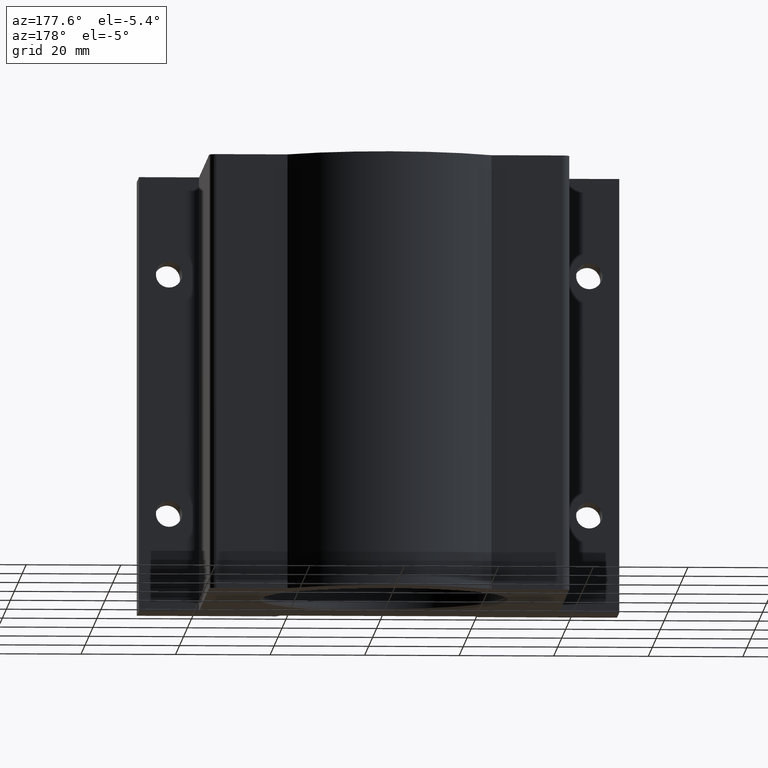
[diagram: clean part render]
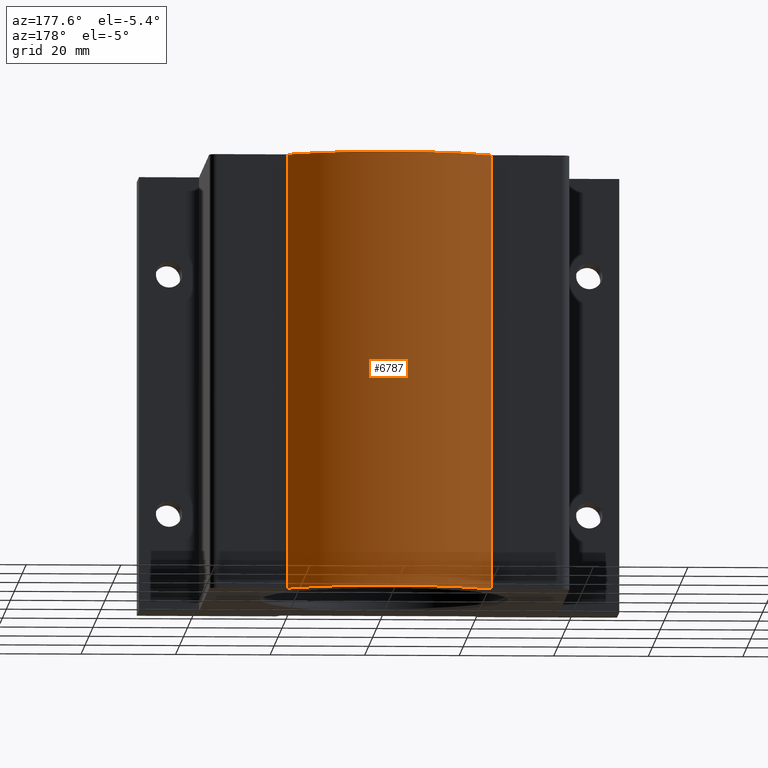
[diagram: same view with one face highlighted and labeled with its STEP entity id]
A machine part, auxiliary view. The second image highlights one B-rep face of the part: STEP entity #6787.
In plain terms, the highlighted cylindrical surface (partial cylindrical patch) has radius 33.3248 mm, axis along (0, 0, 1).
Its self-contained STEP definition (entity closure, byte-faithful):
#41 = CARTESIAN_POINT ( 'NONE',  ( -0.8493197277821821212, 0.9999999999999998890, -1.812499999999999778 ) ) ;
#61 = CARTESIAN_POINT ( 'NONE',  ( 0.000000000000000000, 0.000000000000000000, -1.812499999999999778 ) ) ;
#116 = VERTEX_POINT ( 'NONE', #7252 ) ;
#143 = DIRECTION ( 'NONE',  ( 0.000000000000000000, 0.000000000000000000, 1.000000000000000000 ) ) ;
#604 = CARTESIAN_POINT ( 'NONE',  ( 0.000000000000000000, 0.000000000000000000, -1.812499999999999778 ) ) ;
#1189 = CARTESIAN_POINT ( 'NONE',  ( -0.8493197277821821212, 0.9999999999999998890, -1.812499999999999778 ) ) ;
#1201 = DIRECTION ( 'NONE',  ( 0.000000000000000000, 0.000000000000000000, 1.000000000000000000 ) ) ;
#1288 = EDGE_CURVE ( 'NONE', #6820, #7960, #3052, .T. ) ;
#2065 = CYLINDRICAL_SURFACE ( 'NONE', #3007, 1.311999999999999833 ) ;
#2326 = DIRECTION ( 'NONE',  ( -0.000000000000000000, 0.000000000000000000, 1.000000000000000000 ) ) ;
#2336 = CARTESIAN_POINT ( 'NONE',  ( 0.8493197277821821212, 0.9999999999999998890, -1.812499999999999778 ) ) ;
#2631 = DIRECTION ( 'NONE',  ( 1.000000000000000000, 0.000000000000000000, 0.000000000000000000 ) ) ;
#2784 = CARTESIAN_POINT ( 'NONE',  ( -0.8493197277821821212, 0.9999999999999998890, 1.812499999999999778 ) ) ;
#2881 = EDGE_LOOP ( 'NONE', ( #6570, #4036, #3824, #6492 ) ) ;
#2981 = LINE ( 'NONE', #2336, #3820 ) ;
#3007 = AXIS2_PLACEMENT_3D ( 'NONE', #61, #143, #2631 ) ;
#3052 = CIRCLE ( 'NONE', #5928, 1.311999999999999833 ) ;
#3171 = DIRECTION ( 'NONE',  ( 0.000000000000000000, 0.000000000000000000, 1.000000000000000000 ) ) ;
#3237 = CIRCLE ( 'NONE', #6120, 1.311999999999999833 ) ;
#3497 = VECTOR ( 'NONE', #3171, 39.37007874015748143 ) ;
#3820 = VECTOR ( 'NONE', #1201, 39.37007874015748143 ) ;
#3824 = ORIENTED_EDGE ( 'NONE', *, *, #1288, .T. ) ;
#4036 = ORIENTED_EDGE ( 'NONE', *, *, #7920, .F. ) ;
#4468 = DIRECTION ( 'NONE',  ( -0.000000000000000000, 0.000000000000000000, 1.000000000000000000 ) ) ;
#5086 = DIRECTION ( 'NONE',  ( 1.000000000000000000, 0.000000000000000000, 0.000000000000000000 ) ) ;
#5142 = EDGE_CURVE ( 'NONE', #7960, #7526, #6784, .T. ) ;
#5249 = CARTESIAN_POINT ( 'NONE',  ( 0.8493197277821821212, 0.9999999999999998890, -1.812499999999999778 ) ) ;
#5813 = FACE_OUTER_BOUND ( 'NONE', #2881, .T. ) ;
#5846 = EDGE_CURVE ( 'NONE', #116, #7526, #3237, .T. ) ;
#5928 = AXIS2_PLACEMENT_3D ( 'NONE', #604, #4468, #5086 ) ;
#6120 = AXIS2_PLACEMENT_3D ( 'NONE', #7921, #2326, #7315 ) ;
#6492 = ORIENTED_EDGE ( 'NONE', *, *, #5142, .T. ) ;
#6570 = ORIENTED_EDGE ( 'NONE', *, *, #5846, .F. ) ;
#6784 = LINE ( 'NONE', #1189, #3497 ) ;
#6787 = ADVANCED_FACE ( 'NONE', ( #5813 ), #2065, .T. ) ;
#6820 = VERTEX_POINT ( 'NONE', #5249 ) ;
#7252 = CARTESIAN_POINT ( 'NONE',  ( 0.8493197277821821212, 0.9999999999999998890, 1.812499999999999778 ) ) ;
#7315 = DIRECTION ( 'NONE',  ( 1.000000000000000000, 0.000000000000000000, 0.000000000000000000 ) ) ;
#7526 = VERTEX_POINT ( 'NONE', #2784 ) ;
#7920 = EDGE_CURVE ( 'NONE', #6820, #116, #2981, .T. ) ;
#7921 = CARTESIAN_POINT ( 'NONE',  ( 0.000000000000000000, 0.000000000000000000, 1.812499999999999778 ) ) ;
#7960 = VERTEX_POINT ( 'NONE', #41 ) ;